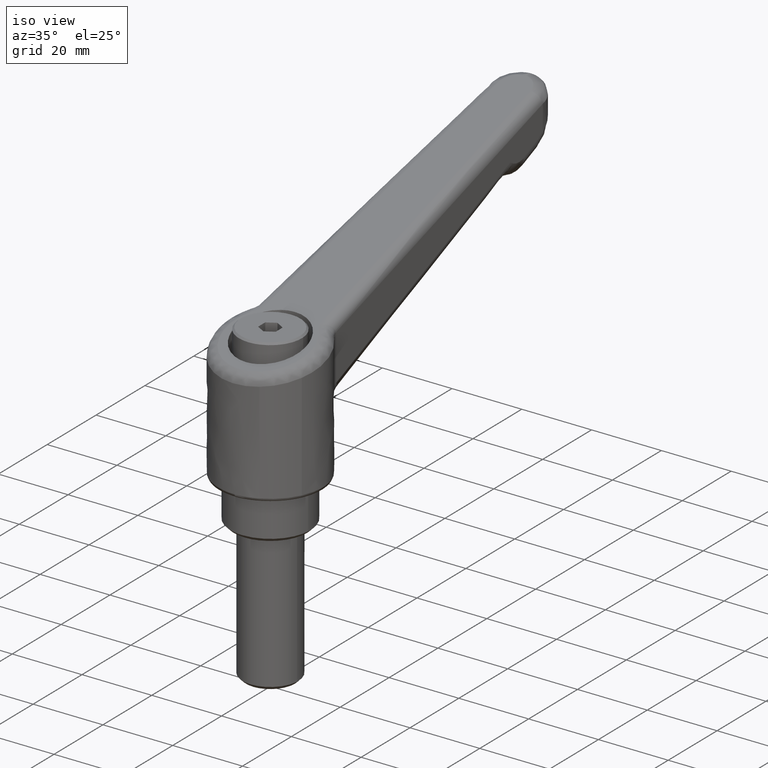
[diagram: clean part render]
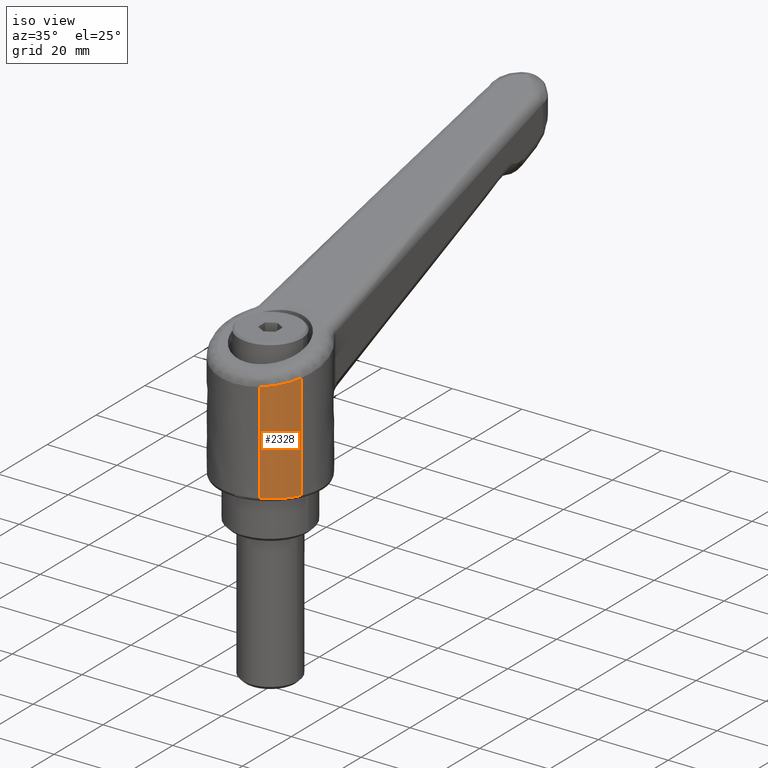
[diagram: same view with one face highlighted and labeled with its STEP entity id]
A machine part, iso view. The second image highlights one B-rep face of the part: STEP entity #2328.
In plain terms, the highlighted face is a freeform B-spline surface patch.
Its self-contained STEP definition (entity closure, byte-faithful):
#2002=CARTESIAN_POINT('',(-13.591124882679040,-6.346757000493716,12.999999998309301));
#2003=VERTEX_POINT('',#2002);
#2017=CARTESIAN_POINT('',(-13.591118296123440,-6.346771105100308,41.912158465186323));
#2018=VERTEX_POINT('',#2017);
#2019=CARTESIAN_POINT('',(-13.591118296123440,-6.346771105100308,41.912158465186323));
#2020=CARTESIAN_POINT('',(-13.591124882679040,-6.346757000493716,12.999999998309301));
#2021=QUASI_UNIFORM_CURVE('',1,(#2019,#2020),.UNSPECIFIED.,.F.,.U.);
#2022=EDGE_CURVE('',#2018,#2003,#2021,.T.);
#2191=CARTESIAN_POINT('',(-6.495377530397811,-13.520727448520329,43.435143650820493));
#2192=VERTEX_POINT('',#2191);
#2206=CARTESIAN_POINT('',(-6.495353380008533,-13.520739050389780,12.999999999710839));
#2207=VERTEX_POINT('',#2206);
#2208=CARTESIAN_POINT('',(-6.495377530397811,-13.520727448520329,43.435143650820493));
#2209=CARTESIAN_POINT('',(-6.495353380008533,-13.520739050389780,12.999999999710839));
#2210=QUASI_UNIFORM_CURVE('',1,(#2208,#2209),.UNSPECIFIED.,.F.,.U.);
#2211=EDGE_CURVE('',#2192,#2207,#2210,.T.);
#2278=CARTESIAN_POINT('',(-6.453340851182671,-13.540921859925200,44.955378027973033));
#2279=CARTESIAN_POINT('',(-6.474336291297635,-13.530835655149914,44.955378027973033));
#2280=CARTESIAN_POINT('',(-11.324351479537871,-11.200889434257581,44.955378027973019));
#2281=CARTESIAN_POINT('',(-13.602664586238864,-6.322045554158150,44.955378027973033));
#2282=CARTESIAN_POINT('',(-13.614206486204495,-6.297329404368893,44.955378027973033));
#2283=CARTESIAN_POINT('',(-6.453340851182671,-13.540921859925200,12.132277744353265));
#2284=CARTESIAN_POINT('',(-6.474336291297635,-13.530835655149914,12.132277744353274));
#2285=CARTESIAN_POINT('',(-11.324351479537871,-11.200889434257581,12.132277744353269));
#2286=CARTESIAN_POINT('',(-13.602664586238864,-6.322045554158150,12.132277744353269));
#2287=CARTESIAN_POINT('',(-13.614206486204495,-6.297329404368893,12.132277744353265));
#2295=(BOUNDED_SURFACE()B_SPLINE_SURFACE(2,1,((#2278,#2283),(#2279,#2284),(#2280,#2285),(#2281,#2286),(#2282,#2287)),.UNSPECIFIED.,.F.,.F.,.U.)B_SPLINE_SURFACE_WITH_KNOTS((3,1,1,3),(2,2),(0.0,0.054568211700625,10.966799531301550,11.021360984049149),(0.0,32.823100283619773),.UNSPECIFIED.)GEOMETRIC_REPRESENTATION_ITEM()RATIONAL_B_SPLINE_SURFACE(((1.001288896772914,1.001288896772914),(1.000644448386457,1.000644448386457),(0.871126986804249,0.871126986804249),(0.855584898267270,0.855584898267270),(0.855507574026090,0.855507574026090)))REPRESENTATION_ITEM('')SURFACE());
#2296=CARTESIAN_POINT('',(-13.591124882679035,-6.346757000493716,12.999999998309303));
#2297=CARTESIAN_POINT('',(-11.324350179746485,-11.200892437834783,12.999999999257723));
#2298=CARTESIAN_POINT('',(-6.495353380008534,-13.520739050389775,12.999999999710841));
#2306=(BOUNDED_CURVE()B_SPLINE_CURVE(2,(#2296,#2297,#2298),.UNSPECIFIED.,.F.,.U.)B_SPLINE_CURVE_WITH_KNOTS((3,3),(0.071874271187485,0.176422116877368),.UNSPECIFIED.)CURVE()GEOMETRIC_REPRESENTATION_ITEM()RATIONAL_B_SPLINE_CURVE((0.880006035200769,0.827949017474505,0.878336694211217))REPRESENTATION_ITEM(''));
#2307=EDGE_CURVE('',#2003,#2207,#2306,.T.);
#2308=ORIENTED_EDGE('',*,*,#2307,.T.);
#2309=ORIENTED_EDGE('',*,*,#2211,.F.);
#2310=CARTESIAN_POINT('',(-6.495377530397811,-13.520727448520333,43.435143650820500));
#2311=CARTESIAN_POINT('',(-9.036351409407057,-12.300039986753522,42.889764658598466));
#2312=CARTESIAN_POINT('',(-10.960802006790541,-10.240157344158190,42.476712710107627));
#2313=CARTESIAN_POINT('',(-12.584662193443480,-8.502018980390432,42.128177593079613));
#2314=CARTESIAN_POINT('',(-13.591118296123438,-6.346771105100308,41.912158465186323));
#2322=(BOUNDED_CURVE()B_SPLINE_CURVE(2,(#2310,#2311,#2312,#2313,#2314),.UNSPECIFIED.,.F.,.U.)B_SPLINE_CURVE_WITH_KNOTS((3,2,3),(0.247903999850875,0.333333333333333,0.406204512863110),.UNSPECIFIED.)CURVE()GEOMETRIC_REPRESENTATION_ITEM()RATIONAL_B_SPLINE_CURVE((0.897348085708199,0.930986783624877,1.0,0.941131760305357,0.908002308991056))REPRESENTATION_ITEM(''));
#2323=EDGE_CURVE('',#2192,#2018,#2322,.T.);
#2324=ORIENTED_EDGE('',*,*,#2323,.T.);
#2325=ORIENTED_EDGE('',*,*,#2022,.T.);
#2326=EDGE_LOOP('',(#2308,#2309,#2324,#2325));
#2327=FACE_OUTER_BOUND('',#2326,.T.);
#2328=ADVANCED_FACE('',(#2327),#2295,.T.);